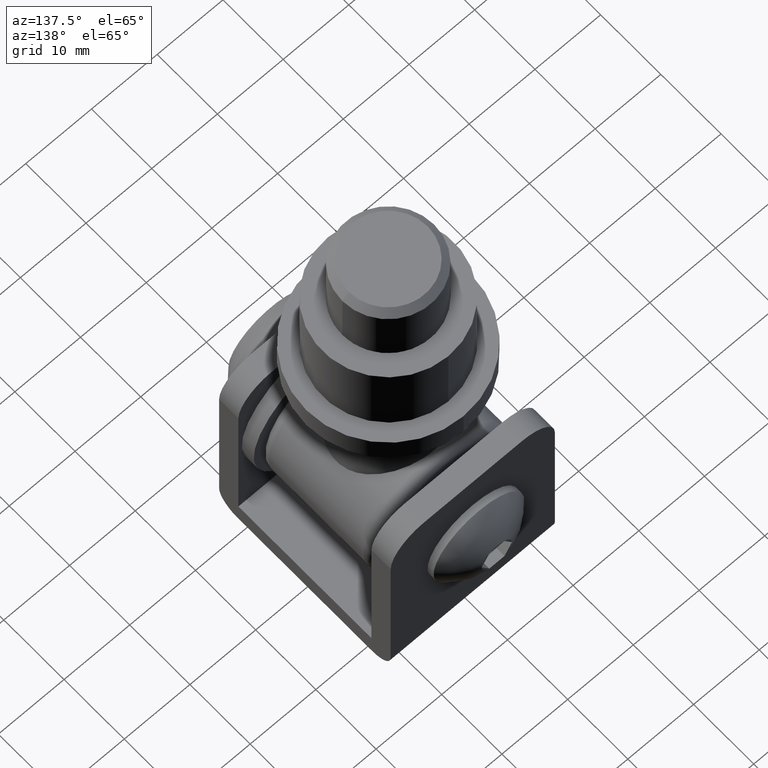
[diagram: clean part render]
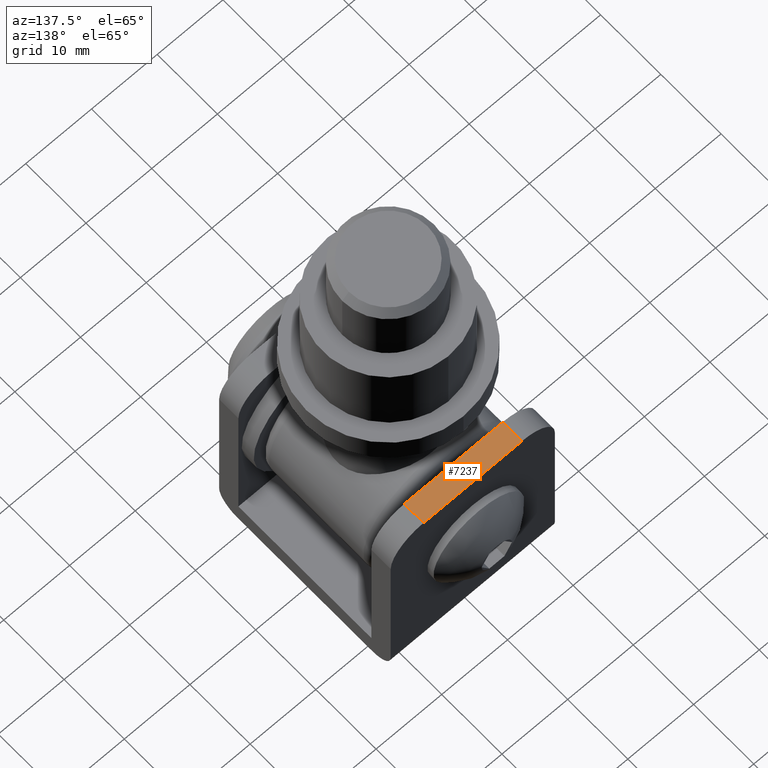
[diagram: same view with one face highlighted and labeled with its STEP entity id]
A machine part, auxiliary view. The second image highlights one B-rep face of the part: STEP entity #7237.
In plain terms, the highlighted planar face has unit normal (0, 0, -1).
Its self-contained STEP definition (entity closure, byte-faithful):
#379 = EDGE_CURVE ( 'NONE', #1461, #5052, #1912, .T. ) ;
#542 = LINE ( 'NONE', #866, #2899 ) ;
#866 = CARTESIAN_POINT ( 'NONE',  ( 12.50000000000000000, 14.25000000000000200, 31.60000000000000100 ) ) ;
#1072 = CARTESIAN_POINT ( 'NONE',  ( 12.50000000000000000, 14.25000000000000200, 31.60000000000000100 ) ) ;
#1228 = VERTEX_POINT ( 'NONE', #4136 ) ;
#1461 = VERTEX_POINT ( 'NONE', #12363 ) ;
#1872 = AXIS2_PLACEMENT_3D ( 'NONE', #1072, #4937, #8084 ) ;
#1912 = LINE ( 'NONE', #11955, #2226 ) ;
#1923 = EDGE_CURVE ( 'NONE', #11286, #5052, #6227, .T. ) ;
#2226 = VECTOR ( 'NONE', #8022, 1000.000000000000000 ) ;
#2899 = VECTOR ( 'NONE', #8912, 1000.000000000000000 ) ;
#3590 = ORIENTED_EDGE ( 'NONE', *, *, #5798, .T. ) ;
#3976 = PLANE ( 'NONE',  #1872 ) ;
#4136 = CARTESIAN_POINT ( 'NONE',  ( 7.500000000000000900, 14.25000000000000200, 31.60000000000000100 ) ) ;
#4937 = DIRECTION ( 'NONE',  ( 0.0000000000000000000, 0.0000000000000000000, -1.000000000000000000 ) ) ;
#4972 = VECTOR ( 'NONE', #10591, 1000.000000000000000 ) ;
#5052 = VERTEX_POINT ( 'NONE', #6560 ) ;
#5607 = LINE ( 'NONE', #8622, #4972 ) ;
#5798 = EDGE_CURVE ( 'NONE', #1228, #1461, #542, .T. ) ;
#6093 = DIRECTION ( 'NONE',  ( -1.000000000000000000, -0.0000000000000000000, -0.0000000000000000000 ) ) ;
#6132 = CARTESIAN_POINT ( 'NONE',  ( 12.50000000000000000, 11.05000000000000200, 31.60000000000000100 ) ) ;
#6227 = LINE ( 'NONE', #6132, #7312 ) ;
#6560 = CARTESIAN_POINT ( 'NONE',  ( -7.500000000000000000, 11.05000000000000200, 31.60000000000000100 ) ) ;
#7237 = ADVANCED_FACE ( 'NONE', ( #9994 ), #3976, .F. ) ;
#7312 = VECTOR ( 'NONE', #6093, 1000.000000000000000 ) ;
#8022 = DIRECTION ( 'NONE',  ( 0.0000000000000000000, -1.000000000000000000, 0.0000000000000000000 ) ) ;
#8084 = DIRECTION ( 'NONE',  ( -1.000000000000000000, 0.0000000000000000000, -0.0000000000000000000 ) ) ;
#8423 = ORIENTED_EDGE ( 'NONE', *, *, #8657, .T. ) ;
#8622 = CARTESIAN_POINT ( 'NONE',  ( 7.500000000000000900, 14.25000000000000200, 31.60000000000000100 ) ) ;
#8657 = EDGE_CURVE ( 'NONE', #11286, #1228, #5607, .T. ) ;
#8716 = CARTESIAN_POINT ( 'NONE',  ( 7.500000000000000900, 11.05000000000000200, 31.60000000000000100 ) ) ;
#8912 = DIRECTION ( 'NONE',  ( -1.000000000000000000, -0.0000000000000000000, -0.0000000000000000000 ) ) ;
#9372 = ORIENTED_EDGE ( 'NONE', *, *, #1923, .F. ) ;
#9565 = EDGE_LOOP ( 'NONE', ( #3590, #9866, #9372, #8423 ) ) ;
#9866 = ORIENTED_EDGE ( 'NONE', *, *, #379, .T. ) ;
#9994 = FACE_OUTER_BOUND ( 'NONE', #9565, .T. ) ;
#10591 = DIRECTION ( 'NONE',  ( -0.0000000000000000000, 1.000000000000000000, -0.0000000000000000000 ) ) ;
#11286 = VERTEX_POINT ( 'NONE', #8716 ) ;
#11955 = CARTESIAN_POINT ( 'NONE',  ( -7.500000000000000000, 11.05000000000000200, 31.60000000000000100 ) ) ;
#12363 = CARTESIAN_POINT ( 'NONE',  ( -7.500000000000000000, 14.25000000000000200, 31.60000000000000100 ) ) ;